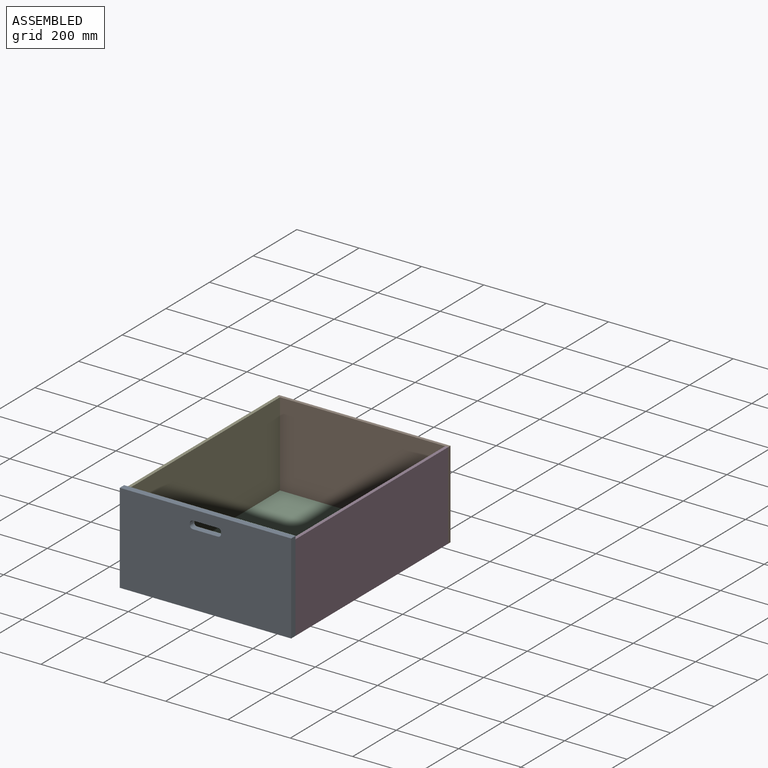
[diagram: assembled view]
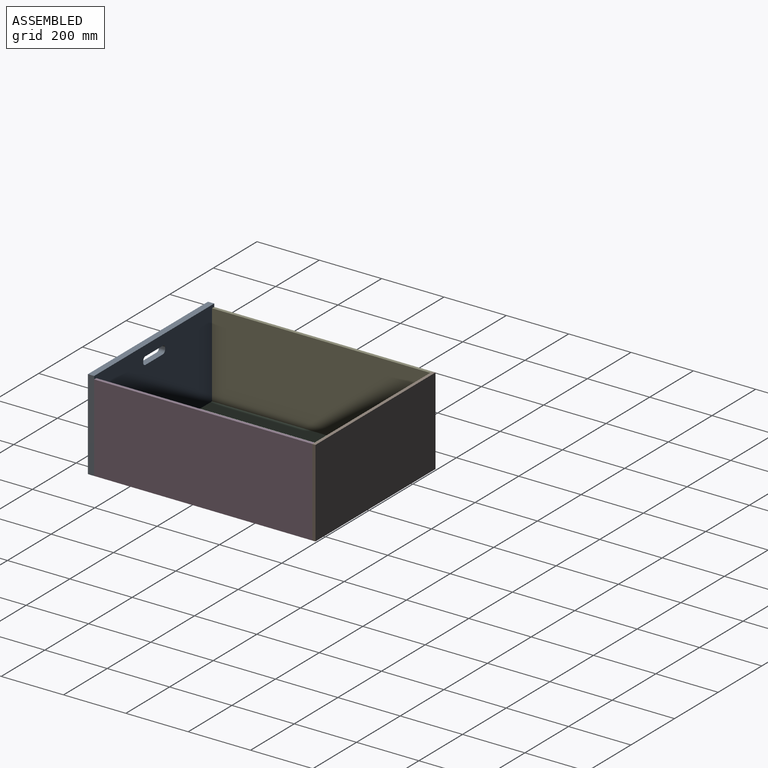
[diagram: assembled view, second angle]
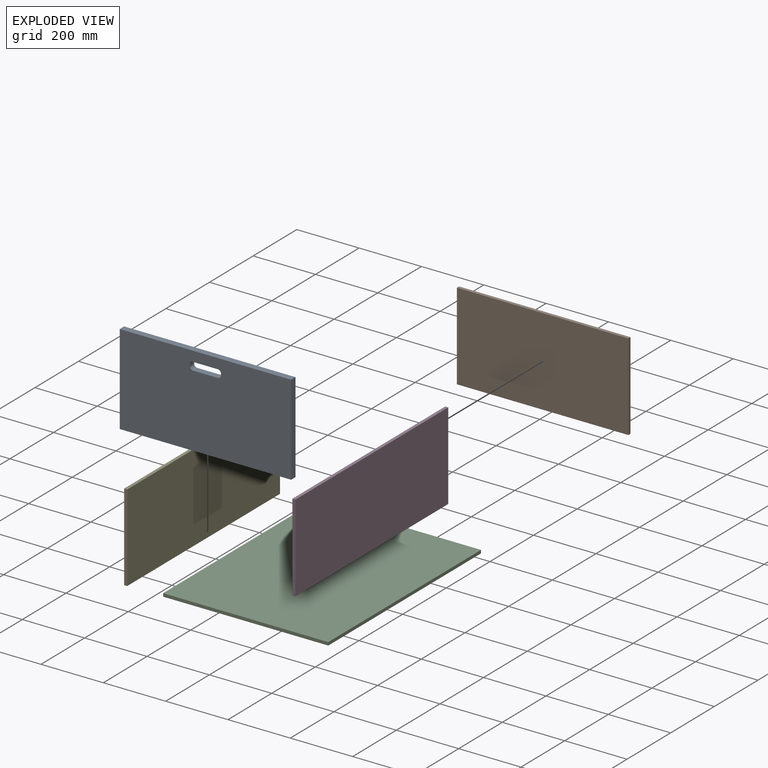
[diagram: exploded view]
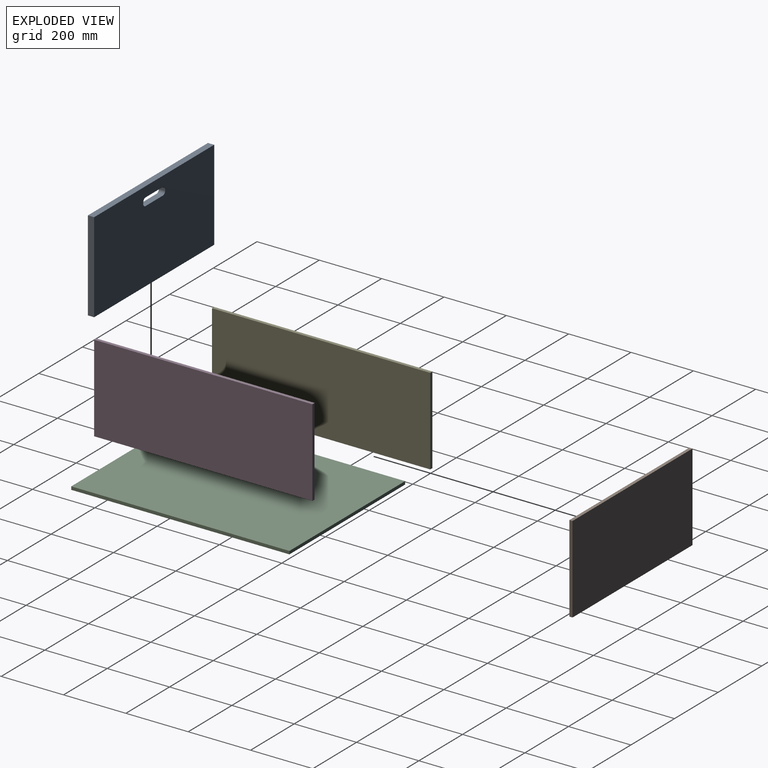
[diagram: exploded view, second angle]
ASSEMBLY  parts=5 mates=12
PART A: 14 faces, bbox 550x20x290 mm
  f0: plane 550x20mm, normal (0,0,1), area 11000mm2, adj f1,f3,f4,f5
  f1: plane 290x20mm, normal (-1,0,0), area 5800mm2, adj f0,f2,f4,f5
  f2: plane 550x20mm, normal (0,0,-1), area 11000mm2, adj f1,f3,f4,f5
  f3: plane 290x20mm, normal (1,0,0), area 5800mm2, adj f0,f2,f4,f5
  f4: plane 550x290mm, normal (0,-1,0), area 157085.8mm2, adj f0,f1,f2,f3,f6,f7,f8,f9
  f5: plane 550x290mm, normal (0,1,0), area 157085.8mm2, adj f0,f1,f2,f3,f6,f7,f8,f9
  f6: plane 20x5mm, normal (-1,0,0), area 100mm2, adj f4,f5,f7,f13
  f7: cylinder r=10mm len=20mm, axis (0,-1,0), area 314.2mm2, adj f4,f5,f6,f8
  f8: plane 80x20mm, normal (0,0,-1), area 1600mm2, adj f4,f5,f7,f9
  f9: cylinder r=10mm len=20mm, axis (0,-1,0), area 314.2mm2, adj f4,f5,f8,f10
  f10: plane 20x5mm, normal (1,0,0), area 100mm2, adj f4,f5,f9,f11
  f11: cylinder r=10mm len=20mm, axis (0,-1,0), area 314.2mm2, adj f4,f5,f10,f12
  f12: plane 80x20mm, normal (0,0,1), area 1600mm2, adj f4,f5,f11,f13
  f13: cylinder r=10mm len=20mm, axis (0,-1,0), area 314.2mm2, adj f4,f5,f6,f12
PART B: 6 faces, bbox 550x10x280 mm
  f0: plane 280x10mm, normal (1,0,0), area 2800mm2, adj f1,f3,f4,f5
  f1: plane 550x10mm, normal (0,0,1), area 5500mm2, adj f0,f2,f4,f5
  f2: plane 280x10mm, normal (-1,0,0), area 2800mm2, adj f1,f3,f4,f5
  f3: plane 550x10mm, normal (0,0,-1), area 5500mm2, adj f0,f2,f4,f5
  f4: plane 550x280mm, normal (0,-1,0), area 154000mm2, adj f0,f1,f2,f3
  f5: plane 550x280mm, normal (0,1,0), area 154000mm2, adj f0,f1,f2,f3
PART C: 6 faces, bbox 530x700x10 mm
  f0: plane 700x10mm, normal (1,0,0), area 7000mm2, adj f1,f3,f4,f5
  f1: plane 530x10mm, normal (0,1,0), area 5300mm2, adj f0,f2,f4,f5
  f2: plane 700x10mm, normal (-1,0,0), area 7000mm2, adj f1,f3,f4,f5
  f3: plane 530x10mm, normal (0,-1,0), area 5300mm2, adj f0,f2,f4,f5
  f4: plane 700x530mm, normal (0,0,1), area 371000mm2, adj f0,f1,f2,f3
  f5: plane 700x530mm, normal (0,0,-1), area 371000mm2, adj f0,f1,f2,f3
PART D: 6 faces, bbox 700x10x280 mm
  f0: plane 280x10mm, normal (1,0,0), area 2800mm2, adj f1,f3,f4,f5
  f1: plane 700x10mm, normal (0,0,1), area 7000mm2, adj f0,f2,f4,f5
  f2: plane 280x10mm, normal (-1,0,0), area 2800mm2, adj f1,f3,f4,f5
  f3: plane 700x10mm, normal (0,0,-1), area 7000mm2, adj f0,f2,f4,f5
  f4: plane 700x280mm, normal (0,-1,0), area 196000mm2, adj f0,f1,f2,f3
  f5: plane 700x280mm, normal (0,1,0), area 196000mm2, adj f0,f1,f2,f3
PART E: same geometry as D
PLACE A t=(-810.66,-306.87,-145.17)mm
PLACE B t=(-810.66,408.13,-150.17)mm
PLACE C t=(-810.66,53.13,-285.17)mm
PLACE D rot(axis=(0,0,-1),90deg) t=(-540.66,53.13,-150.17)mm
PLACE E rot(axis=(-0.71,0.71,0),180deg) t=(-1080.66,53.13,-150.17)mm
MATE planar E.f4 <-> C.f2  axis (1,0,0) through (-1075.66,53.13,-150.17)mm
MATE planar C.f5 <-> D.f3  axis (0,0,-1) through (-810.66,53.13,-290.17)mm
MATE planar C.f3 <-> E.f0  axis (0,-1,0) through (-810.66,-296.87,-285.17)mm
MATE planar E.f2 <-> B.f4  axis (0,1,0) through (-1080.66,403.13,-150.17)mm
MATE planar A.f2 <-> C.f5  axis (0,0,-1) through (-810.66,-306.87,-290.17)mm
MATE planar D.f5 <-> B.f0  axis (1,0,0) through (-535.66,53.13,-150.17)mm
MATE planar D.f0 <-> A.f5  axis (0,-1,0) through (-540.66,-296.87,-150.17)mm
MATE planar D.f0 <-> C.f3  axis (0,-1,0) through (-540.66,-296.87,-150.17)mm
MATE planar C.f5 <-> B.f3  axis (0,0,-1) through (-810.66,53.13,-290.17)mm
MATE planar C.f5 <-> E.f1  axis (0,0,-1) through (-810.66,53.13,-290.17)mm
MATE planar D.f5 <-> A.f3  axis (1,0,0) through (-535.66,53.13,-150.17)mm
MATE planar D.f4 <-> C.f0  axis (-1,0,0) through (-545.66,53.13,-150.17)mm
